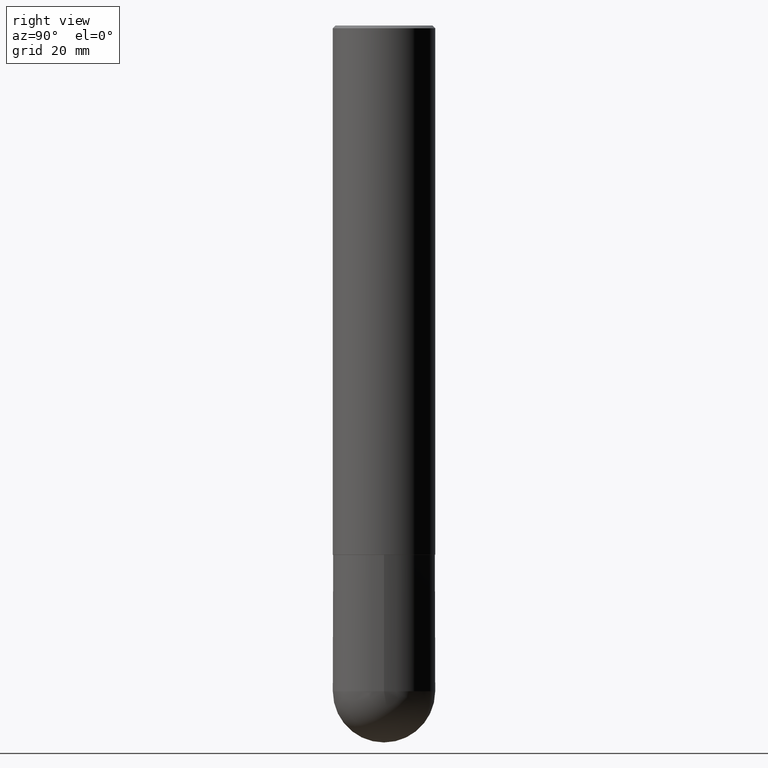
[diagram: clean part render]
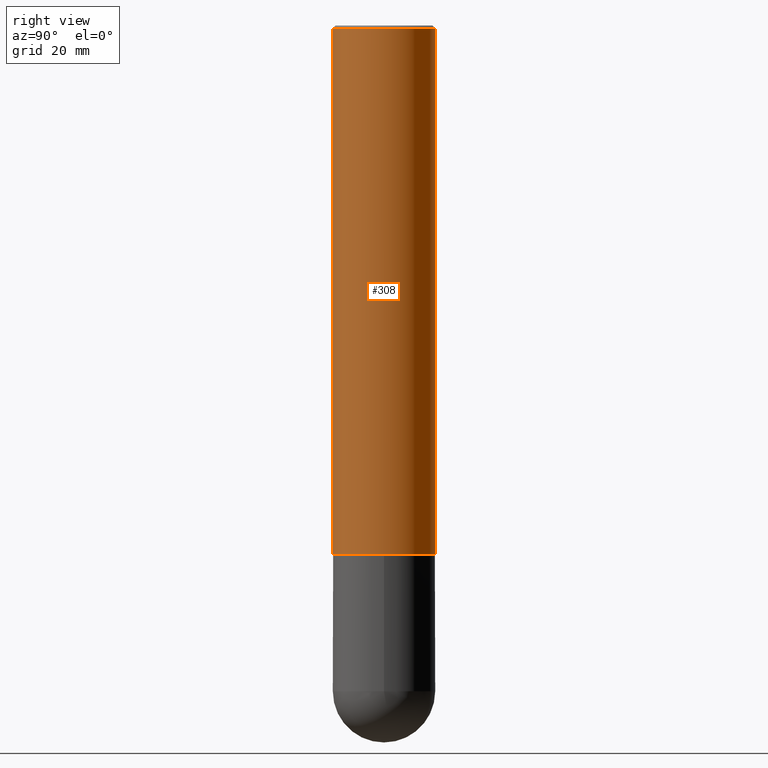
[diagram: same view with one face highlighted and labeled with its STEP entity id]
A machine part, right view. The second image highlights one B-rep face of the part: STEP entity #308.
In plain terms, the highlighted cylindrical surface (partial cylindrical patch) has radius 9.525 mm, axis along (-0, 0, 1).
Its self-contained STEP definition (entity closure, byte-faithful):
#4 = AXIS2_PLACEMENT_3D ( 'NONE', #386, #92, #218 ) ;
#7 = DIRECTION ( 'NONE',  ( -2.445496861697833263E-29, 3.491441161752143275E-15, 1.000000000000000000 ) ) ;
#10 = DIRECTION ( 'NONE',  ( -2.445496861697833263E-29, 3.491441161752143669E-15, 1.000000000000000000 ) ) ;
#27 = LINE ( 'NONE', #256, #317 ) ;
#28 = ORIENTED_EDGE ( 'NONE', *, *, #392, .T. ) ;
#32 = EDGE_LOOP ( 'NONE', ( #28, #111, #321, #331 ) ) ;
#39 = EDGE_CURVE ( 'NONE', #182, #354, #287, .T. ) ;
#64 = FACE_OUTER_BOUND ( 'NONE', #32, .T. ) ;
#78 = CARTESIAN_POINT ( 'NONE',  ( -2.618611004132258903E-15, -0.3750000000000140443, -3.873999999999999222 ) ) ;
#82 = CARTESIAN_POINT ( 'NONE',  ( 2.618611004132351200E-15, 0.3750000000000000555, -0.02000000000000139513 ) ) ;
#92 = DIRECTION ( 'NONE',  ( -2.445496861697833263E-29, 3.491441161752143275E-15, 1.000000000000000000 ) ) ;
#98 = DIRECTION ( 'NONE',  ( -6.982962677686265922E-15, -1.000000000000000000, 3.494488891895535640E-15 ) ) ;
#111 = ORIENTED_EDGE ( 'NONE', *, *, #383, .T. ) ;
#162 = CARTESIAN_POINT ( 'NONE',  ( 0.000000000000000000, 0.000000000000000000, 0.000000000000000000 ) ) ;
#163 = LINE ( 'NONE', #203, #245 ) ;
#174 = AXIS2_PLACEMENT_3D ( 'NONE', #368, #412, #98 ) ;
#177 = VERTEX_POINT ( 'NONE', #78 ) ;
#182 = VERTEX_POINT ( 'NONE', #206 ) ;
#203 = CARTESIAN_POINT ( 'NONE',  ( -2.618611004132351989E-15, -0.3750000000000002776, 1.309290435657054813E-15 ) ) ;
#206 = CARTESIAN_POINT ( 'NONE',  ( -2.572686749164324336E-15, -0.3750000000000001665, -0.01999999999999877570 ) ) ;
#215 = EDGE_CURVE ( 'NONE', #177, #182, #163, .T. ) ;
#218 = DIRECTION ( 'NONE',  ( -6.982962677686266711E-15, -1.000000000000000000, 2.913971193241876822E-15 ) ) ;
#240 = AXIS2_PLACEMENT_3D ( 'NONE', #162, #7, #333 ) ;
#245 = VECTOR ( 'NONE', #10, 39.37007874015748143 ) ;
#246 = DIRECTION ( 'NONE',  ( -2.445496861697833263E-29, 3.491441161752143669E-15, 1.000000000000000000 ) ) ;
#256 = CARTESIAN_POINT ( 'NONE',  ( 2.664535259100377275E-15, 0.3750000000000002776, -1.309290435657054813E-15 ) ) ;
#287 = CIRCLE ( 'NONE', #174, 0.3750000000000001110 ) ;
#299 = VERTEX_POINT ( 'NONE', #364 ) ;
#308 = ADVANCED_FACE ( 'NONE', ( #64 ), #341, .T. ) ;
#317 = VECTOR ( 'NONE', #246, 39.37007874015748143 ) ;
#321 = ORIENTED_EDGE ( 'NONE', *, *, #39, .F. ) ;
#331 = ORIENTED_EDGE ( 'NONE', *, *, #215, .F. ) ;
#333 = DIRECTION ( 'NONE',  ( -6.982962677686266711E-15, -1.000000000000000000, 3.491441161752143669E-15 ) ) ;
#341 = CYLINDRICAL_SURFACE ( 'NONE', #240, 0.3750000000000002776 ) ;
#354 = VERTEX_POINT ( 'NONE', #82 ) ;
#364 = CARTESIAN_POINT ( 'NONE',  ( 2.664535259100425790E-15, 0.3749999999999870104, -3.874000000000001442 ) ) ;
#368 = CARTESIAN_POINT ( 'NONE',  ( 4.890993723395688036E-31, -6.982882323504315786E-17, -0.02000000000000008715 ) ) ;
#370 = CIRCLE ( 'NONE', #4, 0.3750000000000004996 ) ;
#383 = EDGE_CURVE ( 'NONE', #299, #354, #27, .T. ) ;
#386 = CARTESIAN_POINT ( 'NONE',  ( 9.473854842217407742E-29, -1.352584306062780307E-14, -3.874000000000000110 ) ) ;
#392 = EDGE_CURVE ( 'NONE', #177, #299, #370, .T. ) ;
#412 = DIRECTION ( 'NONE',  ( -2.445496861697833263E-29, 3.491441161752143275E-15, 1.000000000000000000 ) ) ;